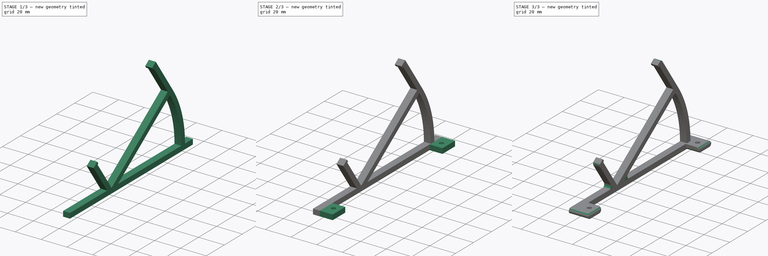
[diagram: build sequence overview — one tinted view per stage of 3, left to right]
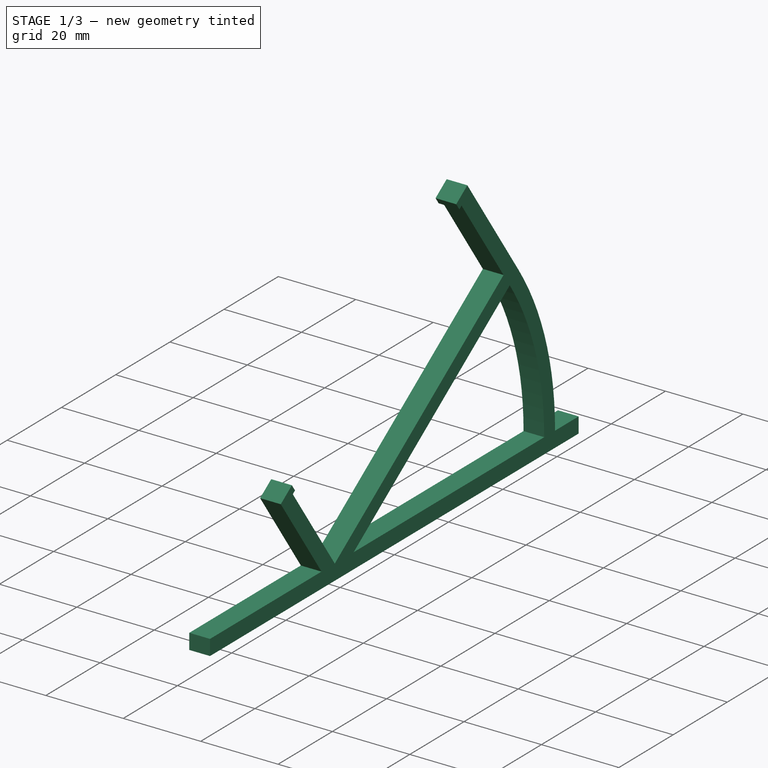
[diagram: stage 1 of 3 — iso view after this stage's code; geometry added in this stage tinted green]
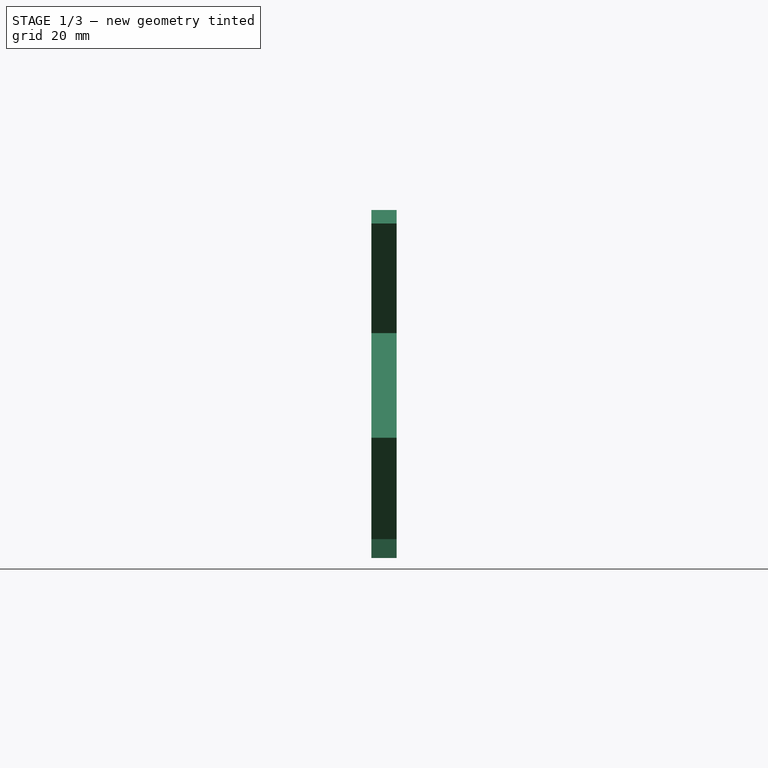
[diagram: stage 1 of 3 — front view after this stage's code; geometry added in this stage tinted green]
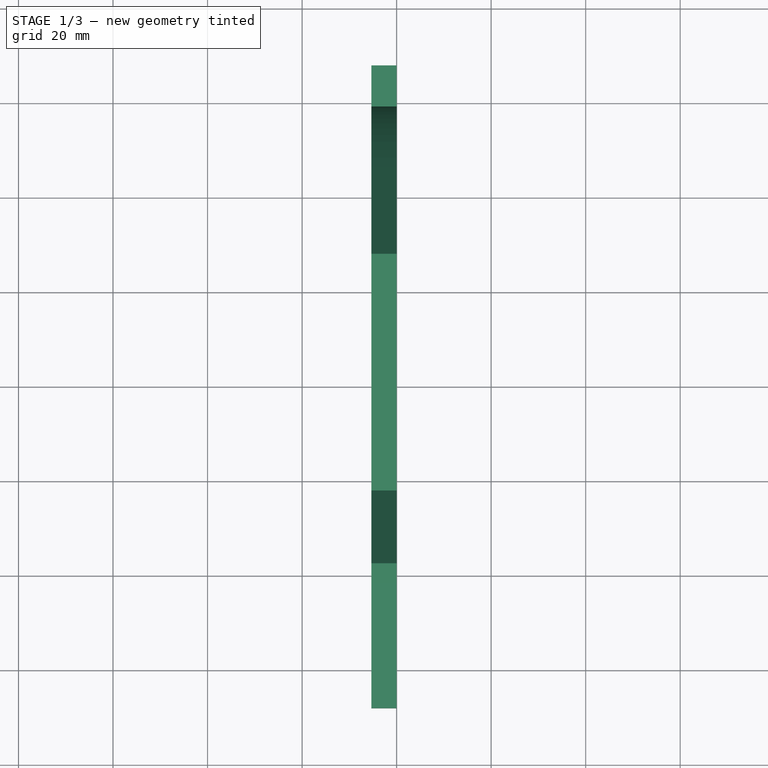
[diagram: stage 1 of 3 — top view after this stage's code; geometry added in this stage tinted green]
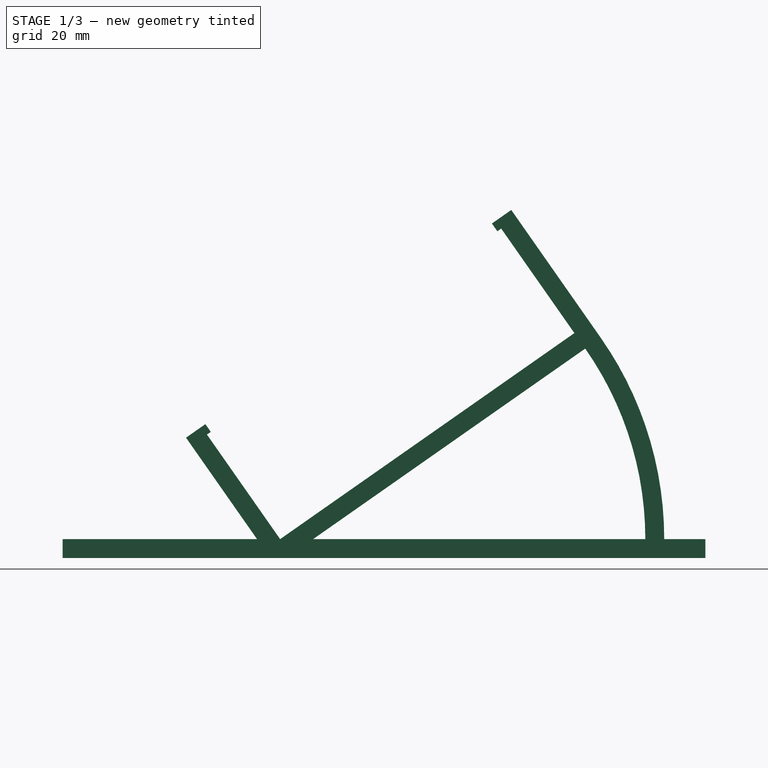
[diagram: stage 1 of 3 — right view after this stage's code; geometry added in this stage tinted green]
FCSTD DOCUMENT  (FreeCAD 0.18R16131 (Git))
Label: DisplayClipHalf
License: All rights reserved
LicenseURL: http://en.wikipedia.org/wiki/All_rights_reserved
objects: Sketcher::SketchObject×3, PartDesign::Pad×3, PartDesign::Fillet×2, PartDesign::Body×1, App::Part×1
note: 12 computed .brp shape members not serialized (recipe doc carries the construction recipe); baked Part::Feature solids carry a one-line shape summary decoded from their .brp

FEATURE [Sketcher::SketchObject] Sketch
  MapMode = 5
  Support = -> [XY_Plane001]
  sketch-geometry (4):
    g0: LineSegment StartX=-5.34 StartY=68 StartZ=0 EndX=0 EndY=68 EndZ=0
    g1: LineSegment StartX=0 StartY=68 StartZ=0 EndX=0 EndY=-68 EndZ=0
    g2: LineSegment StartX=0 StartY=-68 StartZ=0 EndX=-5.34 EndY=-68 EndZ=0
    g3: LineSegment StartX=-5.34 StartY=-68 StartZ=0 EndX=-5.34 EndY=68 EndZ=0
  constraints (11):
    c: Coincident(g0,g1)
    c: Coincident(g1,g2)
    c: Coincident(g2,g3)
    c: Coincident(g3,g0)
    c: Horizontal(g2)
    c: Vertical(g3)
    c: Symmetric(g0,g1,g-1)
    c: Distance(g0) = 5.34
    c: Distance(g3) = 136
    c: Horizontal(g0)
    c: PointOnObject(g0,g-2)
FEATURE [PartDesign::Pad] Pad
  Length = 4
  Length2 = 100
  Profile = -> Sketch
  Reversed = true
  Type = 0
FEATURE [Sketcher::SketchObject] Sketch001
  MapMode = 5
  Placement = pos=(0,0,0) rot=(0.57735,0.57735,0.57735;2.0944rad)
  Support = -> [YZ_Plane001]
  sketch-geometry (23):
    g0: ArcOfCircle CenterX=-15 CenterY=0 CenterZ=0 NormalX=0 NormalY=0 NormalZ=1 AngleXU=0 Radius=74.2874 StartAngle=0 EndAngle=0.610865
    g1: ArcOfCircle CenterX=-15 CenterY=0 CenterZ=0 NormalX=0 NormalY=0 NormalZ=1 AngleXU=0 Radius=70.2874 StartAngle=0 EndAngle=0.610865
    g2: LineSegment StartX=55.2874 StartY=0 StartZ=0 EndX=59.2874 EndY=0 EndZ=0
    g3: LineSegment StartX=-15 StartY=0 StartZ=0 EndX=42.5761 EndY=40.3152 EndZ=0
    g4: LineSegment [constr] StartX=42.5761 StartY=40.3152 StartZ=0 EndX=45.8527 EndY=42.6095 EndZ=0
    g5: LineSegment StartX=45.8527 StartY=42.6095 StartZ=0 EndX=28.0718 EndY=68.0032 EndZ=0
    g6: LineSegment [constr] StartX=28.0718 StartY=68.0032 StartZ=0 EndX=24.7952 EndY=65.7089 EndZ=0
    g7: LineSegment StartX=24.7952 StartY=65.7089 StartZ=0 EndX=40.2818 EndY=43.5918 EndZ=0
    g8: LineSegment StartX=40.2818 StartY=43.5918 StartZ=0 EndX=-21.9738 EndY=0 EndZ=0
    g9: LineSegment StartX=-21.9738 StartY=0 StartZ=0 EndX=-37.4604 EndY=22.1171 EndZ=0
    g10: LineSegment [constr] StartX=-37.4604 StartY=22.1171 StartZ=0 EndX=-40.737 EndY=19.8228 EndZ=0
    g11: LineSegment StartX=-40.737 StartY=19.8228 StartZ=0 EndX=-26.8569 EndY=0 EndZ=0
    g12: LineSegment StartX=-40.737 StartY=19.8228 StartZ=0 EndX=-41.8841 EndY=21.4611 EndZ=0
    g13: LineSegment StartX=-41.8841 StartY=21.4611 StartZ=0 EndX=-37.7884 EndY=24.329 EndZ=0
    g14: LineSegment StartX=-37.7884 StartY=24.329 StartZ=0 EndX=-36.6412 EndY=22.6907 EndZ=0
    g15: LineSegment StartX=-36.6412 StartY=22.6907 StartZ=0 EndX=-37.4604 EndY=22.1171 EndZ=0
    g16: LineSegment StartX=24.7952 StartY=65.7089 StartZ=0 EndX=23.9761 EndY=65.1353 EndZ=0
    g17: LineSegment StartX=23.9761 StartY=65.1353 StartZ=0 EndX=22.8289 EndY=66.7736 EndZ=0
    g18: LineSegment StartX=22.8289 StartY=66.7736 StartZ=0 EndX=26.9247 EndY=69.6415 EndZ=0
    g19: LineSegment StartX=26.9247 StartY=69.6415 StartZ=0 EndX=28.0718 EndY=68.0032 EndZ=0
    g20: LineSegment StartX=-26.8569 StartY=0 StartZ=0 EndX=-26.8569 EndY=-1 EndZ=0
    g21: LineSegment StartX=-26.8569 StartY=-1 StartZ=0 EndX=-15 EndY=-1 EndZ=0
    g22: LineSegment StartX=-15 StartY=-1 StartZ=0 EndX=-15 EndY=0 EndZ=0
  constraints (66):
    c: PointOnObject(g0,g-1)
    c: PointOnObject(g1,g-1)
    c: Coincident(g2,g1)
    c: Coincident(g2,g0)
    c: Distance(g2) = 4
    c: Angle(g1) = 0.610865
    c: Coincident(g1,g0)
    c: PointOnObject(g0,g-1)
    c: Coincident(g3,g0)
    c: Coincident(g3,g1)
    c: Coincident(g4,g1)
    c: Coincident(g4,g0)
    c: Parallel(g4,g3)
    c: Coincident(g5,g0)
    c: Perpendicular(g3,g5)
    c: Coincident(g6,g5)
    c: Perpendicular(g5,g6)
    c: Coincident(g7,g6)
    c: Coincident(g8,g7)
    c: PointOnObject(g8,g-1)
    c: Parallel(g8,g3)
    c: Perpendicular(g6,g7)
    c: Distance(g1,g8) = 4
    c: Distance(g7,g5) = 4
    c: Distance(g8) = 76
    c: Coincident(g9,g8)
    c: Coincident(g10,g9)
    c: Coincident(g11,g10)
    c: PointOnObject(g11,g-1)
    c: Perpendicular(g9,g10)
    c: Perpendicular(g11,g10)
    c: Perpendicular(g8,g9)
    c: Distance(g10) = 4
    c: Equal(g9,g7)
    c: Distance(g9) = 27
    c: Coincident(g12,g10)
    c: Coincident(g13,g12)
    c: Coincident(g14,g13)
    c: Coincident(g15,g14)
    c: Coincident(g15,g9)
    c: Perpendicular(g12,g13)
    c: Perpendicular(g14,g13)
    c: Perpendicular(g15,g14)
    c: Parallel(g12,g11)
    c: Distance(g15) = 1
    c: Distance(g14) = 2
    c: Coincident(g16,g6)
    c: Coincident(g17,g16)
    c: Coincident(g18,g17)
    c: Coincident(g19,g18)
    c: Coincident(g19,g5)
    c: Parallel(g19,g5)
    c: Perpendicular(g18,g19)
    c: Perpendicular(g17,g18)
    c: Perpendicular(g16,g17)
    c: Distance(g16) = 1
    c: Distance(g17) = 2
    c: Coincident(g20,g11)
    c: Coincident(g21,g20)
    c: Horizontal(g21)
    c: Coincident(g22,g21)
    c: Coincident(g22,g0)
    c: Vertical(g22)
    c: Vertical(g20)
    c: Distance(g20) = 1
    c: Distance(g-1,g0) = 15
FEATURE [PartDesign::Pad] Pad001
  BaseFeature = -> Pad
  Length = 5.34
  Length2 = 100
  Profile = -> Sketch001
  Reversed = true
  Type = 0
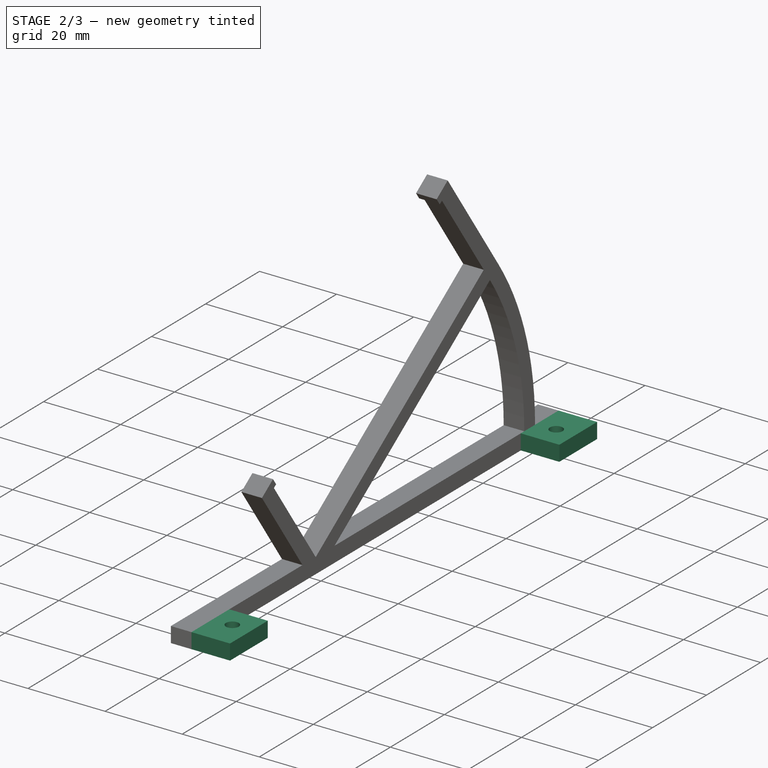
[diagram: stage 2 of 3 — iso view after this stage's code; geometry added in this stage tinted green]
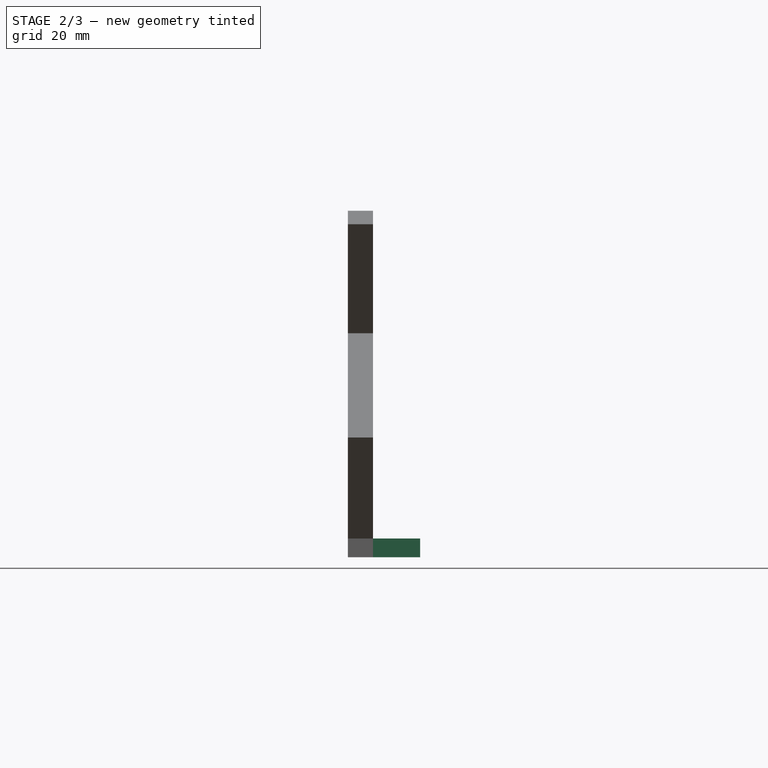
[diagram: stage 2 of 3 — front view after this stage's code; geometry added in this stage tinted green]
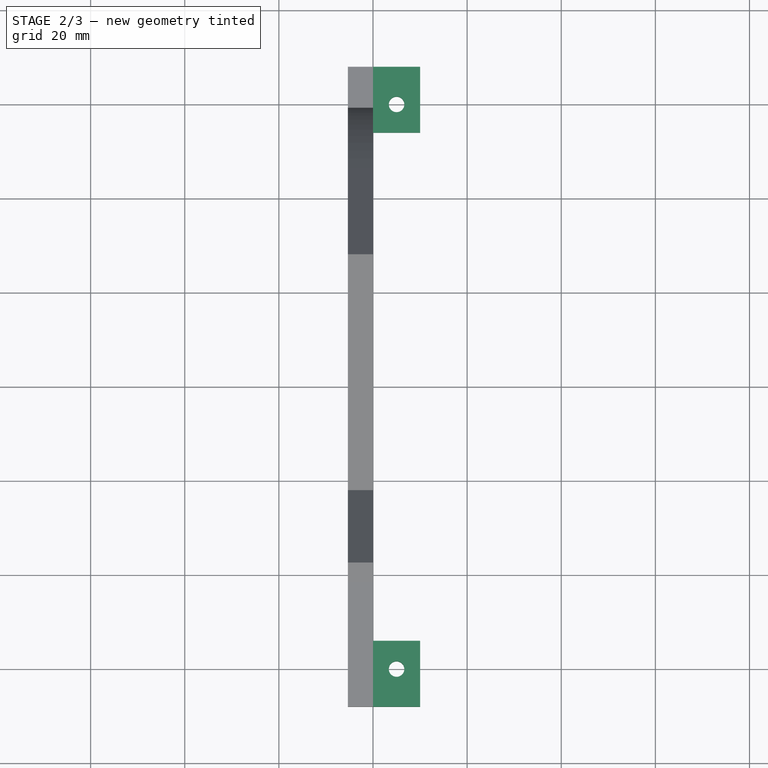
[diagram: stage 2 of 3 — top view after this stage's code; geometry added in this stage tinted green]
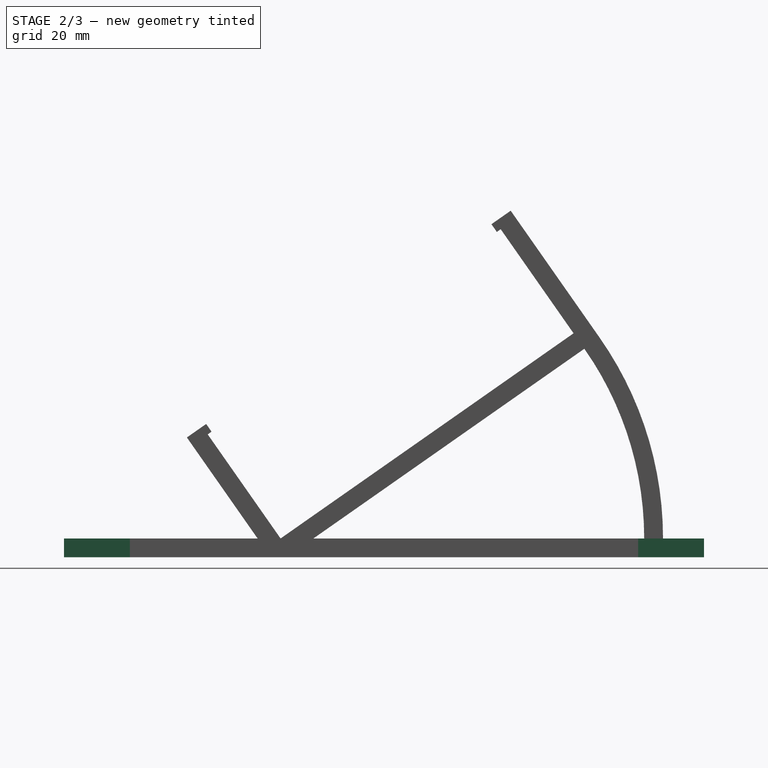
[diagram: stage 2 of 3 — right view after this stage's code; geometry added in this stage tinted green]
FEATURE [Sketcher::SketchObject] Sketch002
  MapMode = 5
  Support = -> [XY_Plane001]
  sketch-geometry (10):
    g0: LineSegment StartX=0 StartY=68 StartZ=0 EndX=10 EndY=68 EndZ=0
    g1: LineSegment StartX=10 StartY=68 StartZ=0 EndX=10 EndY=54 EndZ=0
    g2: LineSegment StartX=10 StartY=54 StartZ=0 EndX=0 EndY=54 EndZ=0
    g3: LineSegment StartX=0 StartY=54 StartZ=0 EndX=0 EndY=68 EndZ=0
    g4: LineSegment StartX=0 StartY=-68 StartZ=0 EndX=10 EndY=-68 EndZ=0
    g5: LineSegment StartX=10 StartY=-68 StartZ=0 EndX=10 EndY=-54 EndZ=0
    g6: LineSegment StartX=10 StartY=-54 StartZ=0 EndX=0 EndY=-54 EndZ=0
    g7: LineSegment StartX=0 StartY=-54 StartZ=0 EndX=0 EndY=-68 EndZ=0
    g8: Circle CenterX=5 CenterY=60 CenterZ=0 NormalX=0 NormalY=0 NormalZ=1 AngleXU=0 Radius=1.65
    g9: Circle CenterX=5 CenterY=-60 CenterZ=0 NormalX=0 NormalY=0 NormalZ=1 AngleXU=0 Radius=1.65
  constraints (28):
    c: Coincident(g0,g1)
    c: Coincident(g1,g2)
    c: Coincident(g2,g3)
    c: Coincident(g3,g0)
    c: Horizontal(g0)
    c: Horizontal(g2)
    c: Vertical(g1)
    c: Vertical(g3)
    c: PointOnObject(g0,g-2)
    c: Coincident(g4,g5)
    c: Coincident(g5,g6)
    c: Coincident(g6,g7)
    c: Coincident(g7,g4)
    c: Horizontal(g4)
    c: Horizontal(g6)
    c: Vertical(g5)
    c: Vertical(g7)
    c: Equal(g5,g1)
    c: Equal(g0,g6)
    c: Distance(g2) = 10
    c: Distance(g1) = 14
    c: Symmetric(g6,g2,g-1)
    c: Distance(g4,g0) = 136
    c: Symmetric(g9,g8,g-1)
    c: Equal(g8,g9)
    c: Radius(g9) = 1.65
    c: Distance(g8,g2) = 6
    c: DistanceX(g-2,g8) = 5
FEATURE [PartDesign::Pad] Pad002
  BaseFeature = -> Pad001
  Length = 4
  Length2 = 100
  Profile = -> Sketch002
  Reversed = true
  Type = 0
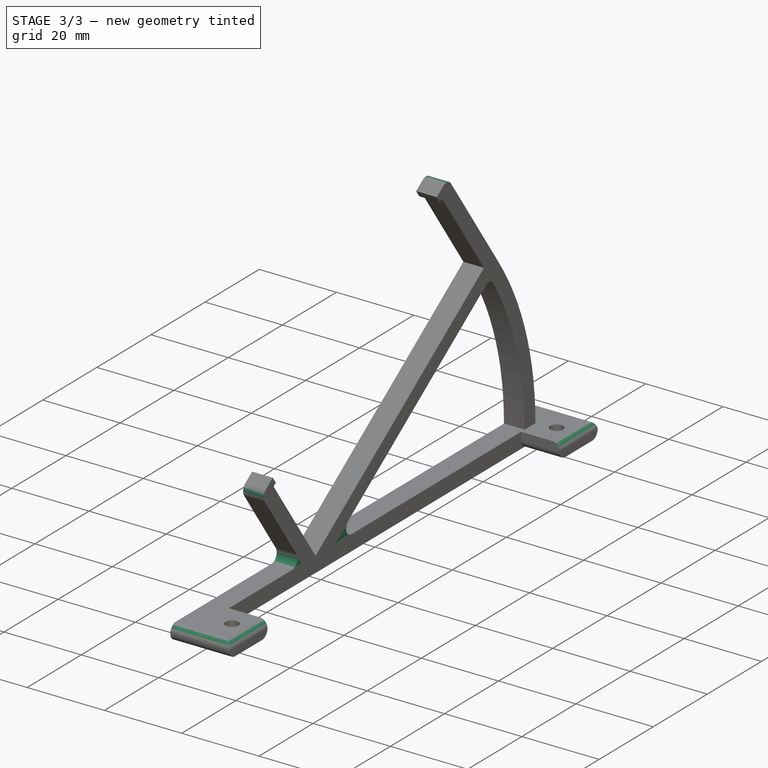
[diagram: stage 3 of 3 — iso view after this stage's code; geometry added in this stage tinted green]
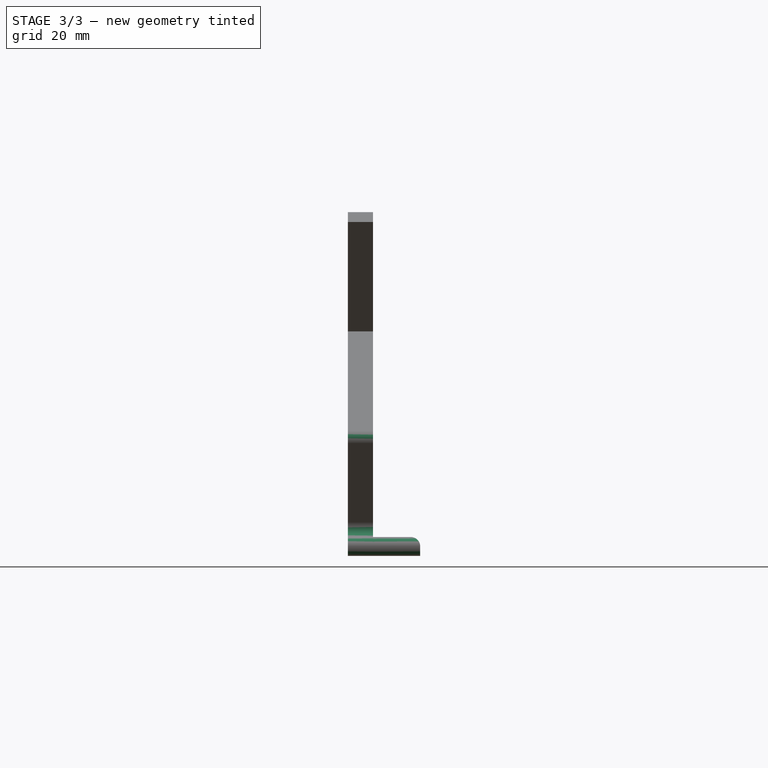
[diagram: stage 3 of 3 — front view after this stage's code; geometry added in this stage tinted green]
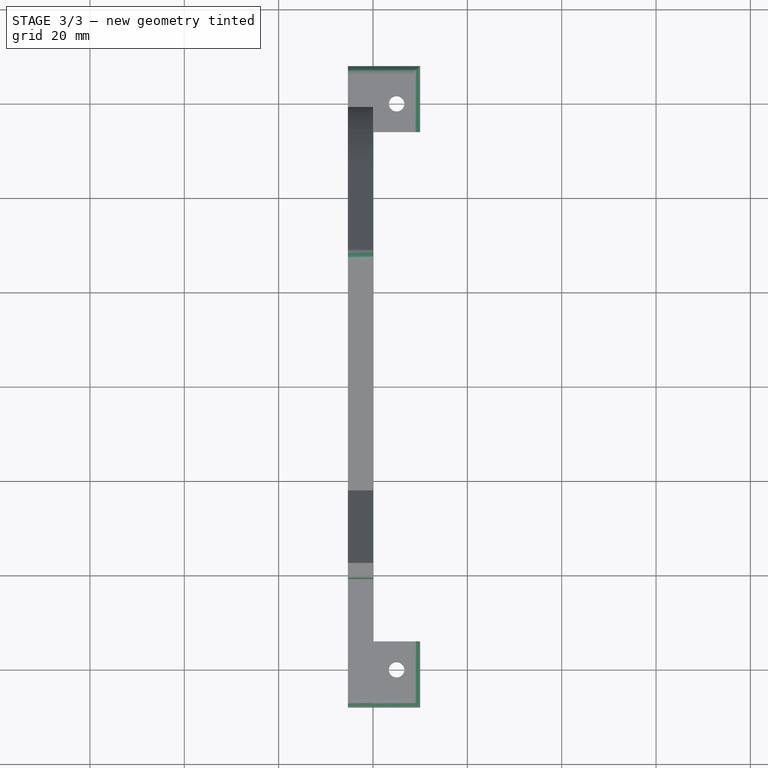
[diagram: stage 3 of 3 — top view after this stage's code; geometry added in this stage tinted green]
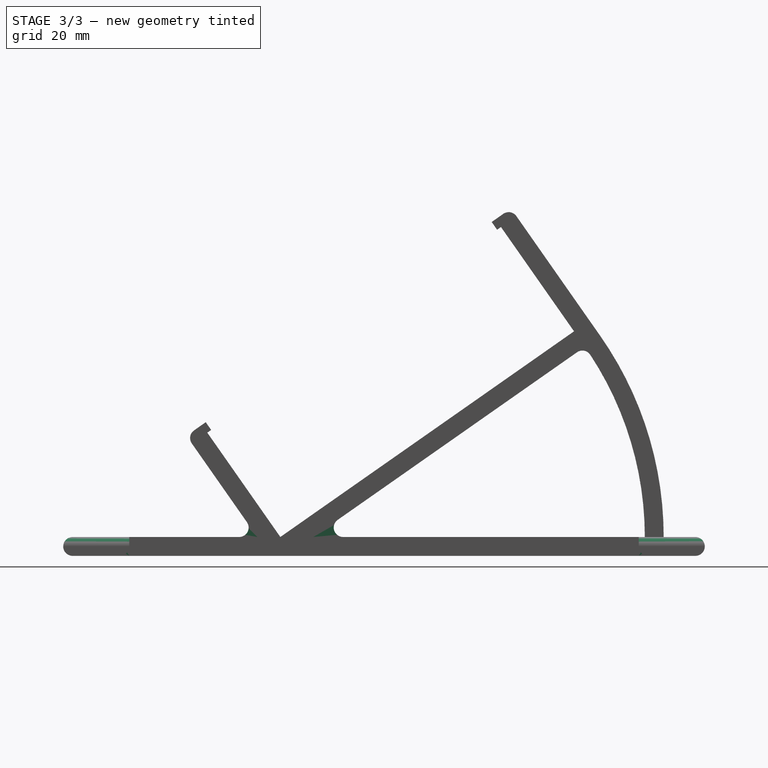
[diagram: stage 3 of 3 — right view after this stage's code; geometry added in this stage tinted green]
FEATURE [PartDesign::Fillet] Fillet
  Base = -> Pad002 [Edge45,Edge64,Edge63,Edge15,Edge26,Edge29,Edge75]
  BaseFeature = -> Pad002
  Radius = 2
FEATURE [PartDesign::Fillet] Fillet001
  Base = -> Fillet [Edge73,Edge25,Edge64,Edge75,Edge89,Edge111]
  BaseFeature = -> Fillet
  Radius = 1.99
FEATURE [PartDesign::Body] Body
  Group = -> [Sketch,Pad,Sketch001,Pad001,Sketch002,Pad002,Fillet,Fillet001]
  Origin = -> Origin001
  Tip = -> Fillet001
FEATURE [App::Part] Part
  Group = -> [Body]
  Origin = -> Origin
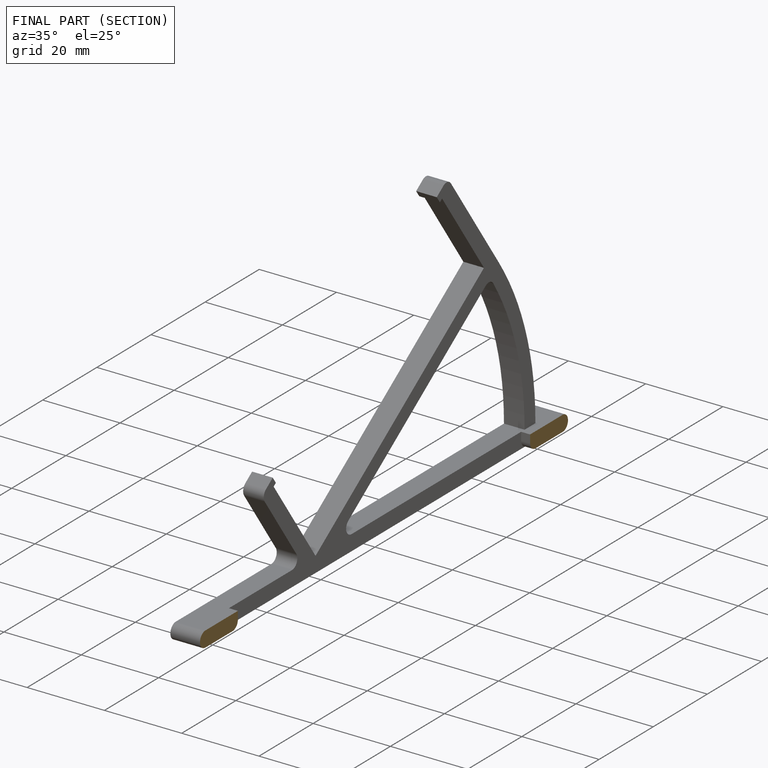
[diagram: finished part — half-section view (interior)]
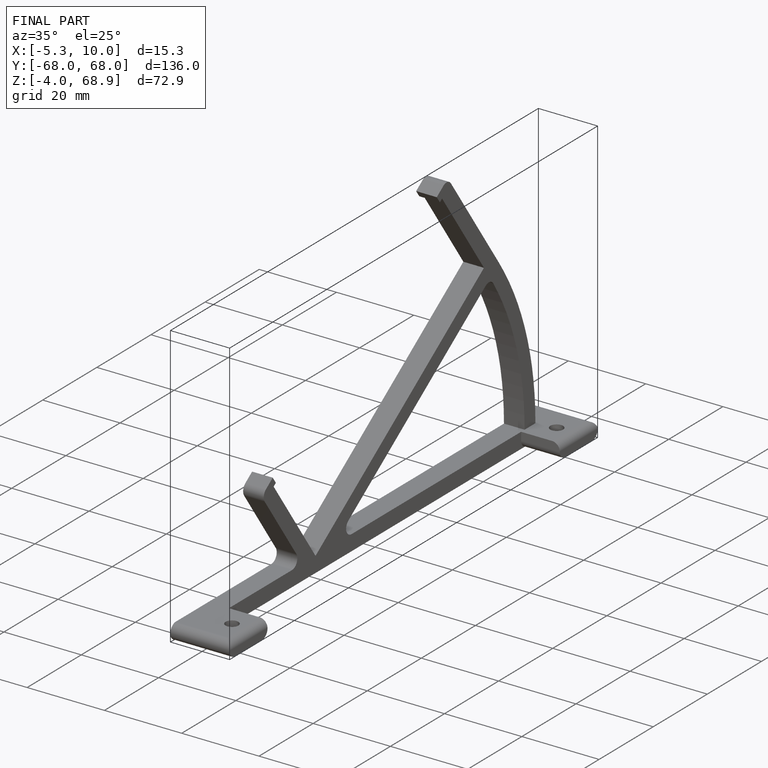
[diagram: finished part — iso view with bounding-box wireframe]
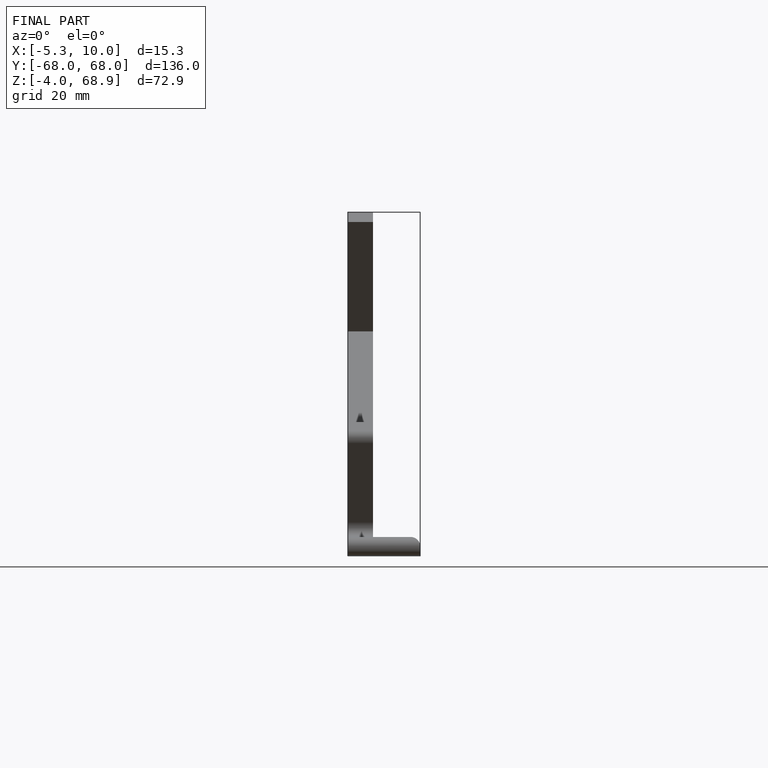
[diagram: finished part — front view with bounding-box wireframe]
